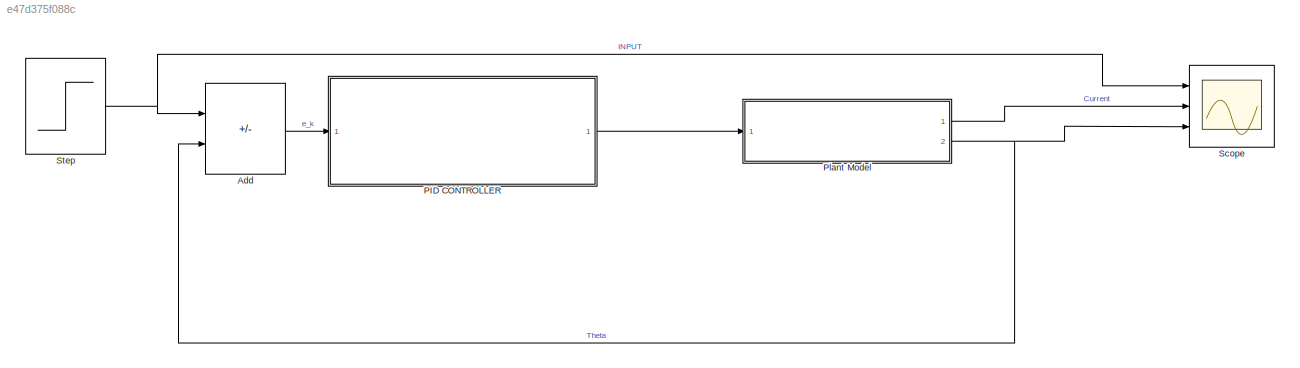
MODEL slx_e47d375f088c
KIND model
CONFIG AbsTol = auto
CONFIG EnableMultiTasking = off
CONFIG FixedStep = auto
CONFIG MaxStep = 0.01
CONFIG MinStep = auto
CONFIG RelTol = 1e-3
CONFIG SampleTimeConstraint = Unconstrained
CONFIG SolverName = VariableStepAuto
CONFIG StartTime = 0.0
CONFIG StopTime = 10.0
BLOCK [Sum] Add
  IconShape = rectangular
  Inputs = +-
  Ports = [2, 1]
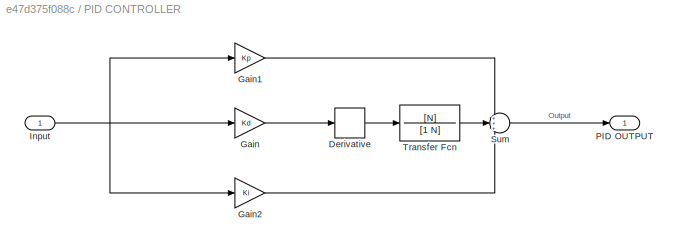
BLOCK [SubSystem] PID CONTROLLER
  Ports = [1, 1]
  RequestExecContextInheritance = off
BLOCK [Derivative] PID CONTROLLER/Derivative
BLOCK [Gain] PID CONTROLLER/Gain
  Gain = Kd
BLOCK [Gain] PID CONTROLLER/Gain1
  Gain = Kp
BLOCK [Gain] PID CONTROLLER/Gain2
  Gain = Ki
BLOCK [Inport] PID CONTROLLER/Input 
BLOCK [Outport] PID CONTROLLER/PID OUTPUT
BLOCK [Sum] PID CONTROLLER/Sum
  Inputs = +++
  Ports = [3, 1]
BLOCK [TransferFcn] PID CONTROLLER/Transfer Fcn
  Denominator = [1 N]
  Numerator = [N]
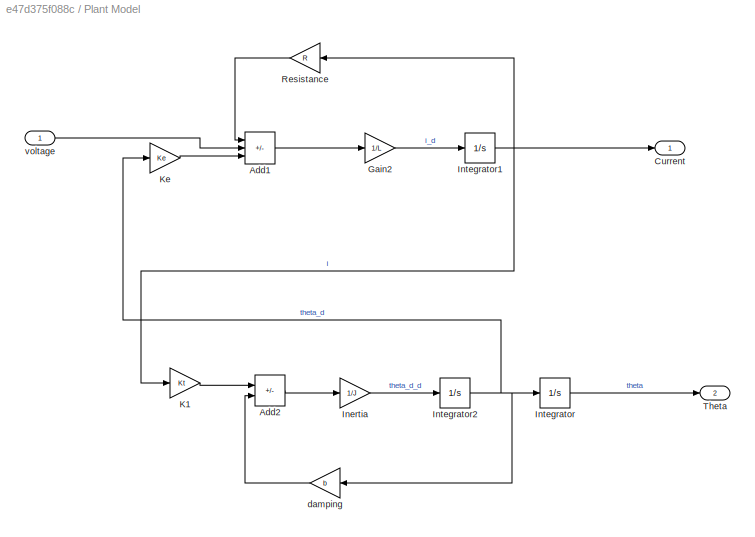
BLOCK [SubSystem] Plant Model
  Ports = [1, 2]
  RequestExecContextInheritance = off
BLOCK [Sum] Plant Model/Add1
  IconShape = rectangular
  Inputs = -+-
  Ports = [3, 1]
BLOCK [Sum] Plant Model/Add2
  IconShape = rectangular
  Inputs = +-
  Ports = [2, 1]
BLOCK [Outport] Plant Model/Current
BLOCK [Gain] Plant Model/Gain2
  Gain = 1/L
BLOCK [Gain] Plant Model/Inertia
  Gain = 1/J
BLOCK [Integrator] Plant Model/Integrator
  Ports = [1, 1]
BLOCK [Integrator] Plant Model/Integrator1
  Ports = [1, 1]
BLOCK [Integrator] Plant Model/Integrator2
  Ports = [1, 1]
BLOCK [Gain] Plant Model/K1
  Gain = Kt
BLOCK [Gain] Plant Model/Ke
  Gain = Ke
BLOCK [Gain] Plant Model/Resistance
  Gain = R
BLOCK [Outport] Plant Model/Theta
  Port = 2
BLOCK [Gain] Plant Model/damping
  Gain = b
BLOCK [Inport] Plant Model/voltage
BLOCK [Scope] Scope
  Floating = off
  NumInputPorts = 3
  Ports = [3]
  ScopeSpecificationString = Simulink.scopes.TimeScopeBlockCfg('CurrentConfiguration', extmgr.ConfigurationSet(extmgr.Configuration('Core','General UI',true),extmgr.Configuration('Core','Source UI',true),extmgr.Configuration('Sources','WiredSimulink',true),extmgr.Configuration('Visuals','Time Domain',true,'SerializedDisplays',{struct('MinYLimReal','-0.125','MaxYLimReal','1.125','YLabelReal','','MinYLimMag','0.00000','MaxYLimM...<+2746ch>
BLOCK [Step] Step
  SampleTime = 0
LINE Add:1 -> PID CONTROLLER:1
LINE PID CONTROLLER/Derivative:1 -> PID CONTROLLER/Transfer Fcn:1
LINE PID CONTROLLER/Gain1:1 -> PID CONTROLLER/Sum:1
LINE PID CONTROLLER/Gain2:1 -> PID CONTROLLER/Sum:3
LINE PID CONTROLLER/Gain:1 -> PID CONTROLLER/Derivative:1
NET PID CONTROLLER/Input :1 -> PID CONTROLLER/Gain1:1, PID CONTROLLER/Gain2:1, PID CONTROLLER/Gain:1
LINE PID CONTROLLER/Sum:1 -> PID CONTROLLER/PID OUTPUT:1
LINE PID CONTROLLER/Transfer Fcn:1 -> PID CONTROLLER/Sum:2
LINE PID CONTROLLER:1 -> Plant Model:1
LINE Plant Model/Add1:1 -> Plant Model/Gain2:1
LINE Plant Model/Add2:1 -> Plant Model/Inertia:1
LINE Plant Model/Gain2:1 -> Plant Model/Integrator1:1
LINE Plant Model/Inertia:1 -> Plant Model/Integrator2:1
NET Plant Model/Integrator1:1 -> Plant Model/Current:1, Plant Model/K1:1, Plant Model/Resistance:1
NET Plant Model/Integrator2:1 -> Plant Model/Integrator:1, Plant Model/Ke:1, Plant Model/damping:1
LINE Plant Model/Integrator:1 -> Plant Model/Theta:1
LINE Plant Model/K1:1 -> Plant Model/Add2:1
LINE Plant Model/Ke:1 -> Plant Model/Add1:3
LINE Plant Model/Resistance:1 -> Plant Model/Add1:1
LINE Plant Model/damping:1 -> Plant Model/Add2:2
LINE Plant Model/voltage:1 -> Plant Model/Add1:2
LINE Plant Model:1 -> Scope:2
NET Plant Model:2 -> Add:2, Scope:3
NET Step:1 -> Add:1, Scope:1
note: NET lines group one-source signal fan-out (src -> all destinations, sorted); 1:1 wires keep LINE
